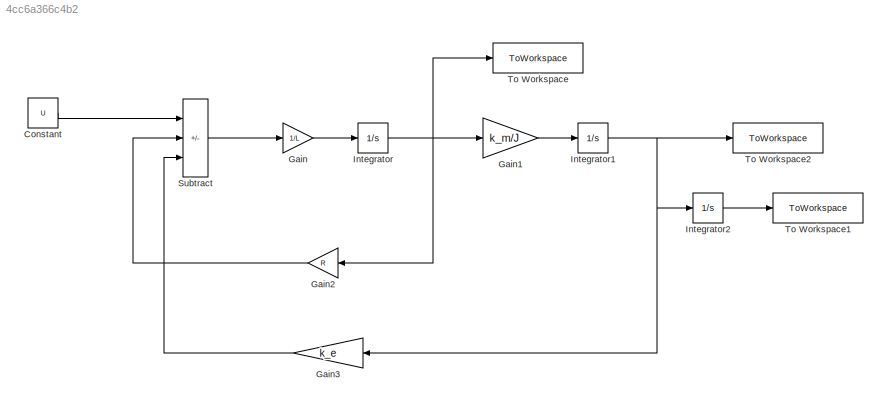
MODEL slx_4cc6a366c4b2
KIND model
CONFIG AbsTol = auto
CONFIG EnableMultiTasking = off
CONFIG FixedStep = auto
CONFIG MaxStep = auto
CONFIG MinStep = auto
CONFIG RelTol = 1e-3
CONFIG SampleTimeConstraint = Unconstrained
CONFIG SolverName = VariableStepAuto
CONFIG StartTime = 0.0
CONFIG StopTime = 10.0
BLOCK [Constant] Constant
  Value = U
BLOCK [Gain] Gain
  Gain = 1/L
BLOCK [Gain] Gain1
  Gain = k_m/J
BLOCK [Gain] Gain2
  Gain = R
  NameLocation = top
BLOCK [Gain] Gain3
  Gain = k_e
  NameLocation = top
BLOCK [Integrator] Integrator
BLOCK [Integrator] Integrator1
BLOCK [Integrator] Integrator2
BLOCK [Sum] Subtract
  IconShape = rectangular
  Inputs = +--
BLOCK [ToWorkspace] To Workspace
  FixptAsFi = on
  MaxDataPoints = inf
  SampleTime = -1
  SaveFormat = Timeseries
  VariableName = I
BLOCK [ToWorkspace] To Workspace1
  FixptAsFi = on
  MaxDataPoints = inf
  SampleTime = -1
  SaveFormat = Timeseries
  VariableName = angle
BLOCK [ToWorkspace] To Workspace2
  FixptAsFi = on
  MaxDataPoints = inf
  SampleTime = -1
  SaveFormat = Timeseries
  VariableName = w
LINE Constant:1 -> Subtract:1
LINE Gain1:1 -> Integrator1:1
LINE Gain2:1 -> Subtract:2
LINE Gain3:1 -> Subtract:3
LINE Gain:1 -> Integrator:1
NET Integrator1:1 -> Gain3:1, Integrator2:1, To Workspace2:1
LINE Integrator2:1 -> To Workspace1:1
NET Integrator:1 -> Gain1:1, Gain2:1, To Workspace:1
LINE Subtract:1 -> Gain:1
note: NET lines group one-source signal fan-out (src -> all destinations, sorted); 1:1 wires keep LINE
